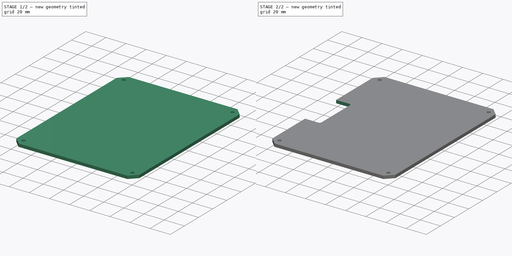
[diagram: build sequence overview — one tinted view per stage of 2, left to right]
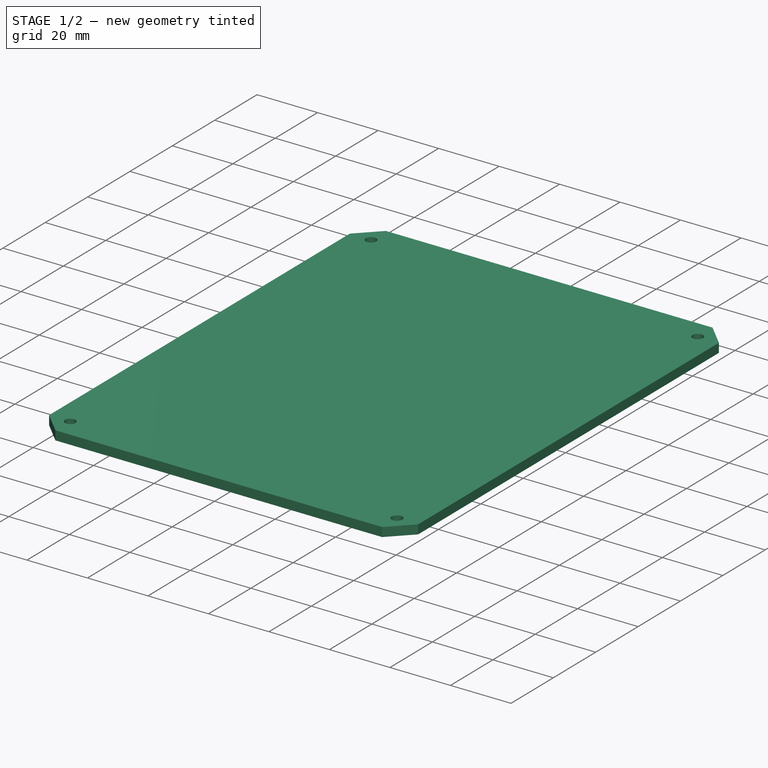
[diagram: stage 1 of 2 — iso view after this stage's code; geometry added in this stage tinted green]
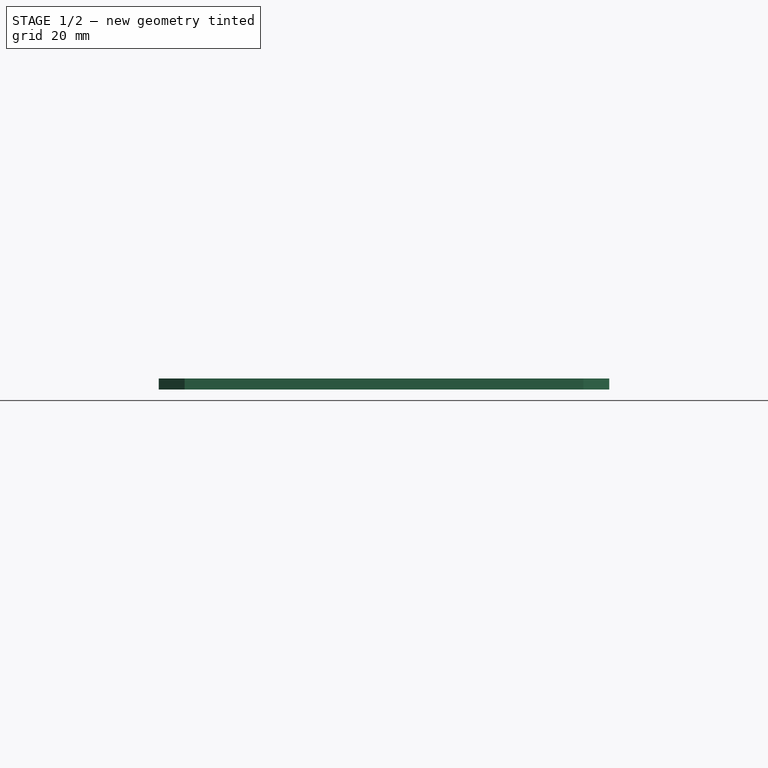
[diagram: stage 1 of 2 — front view after this stage's code; geometry added in this stage tinted green]
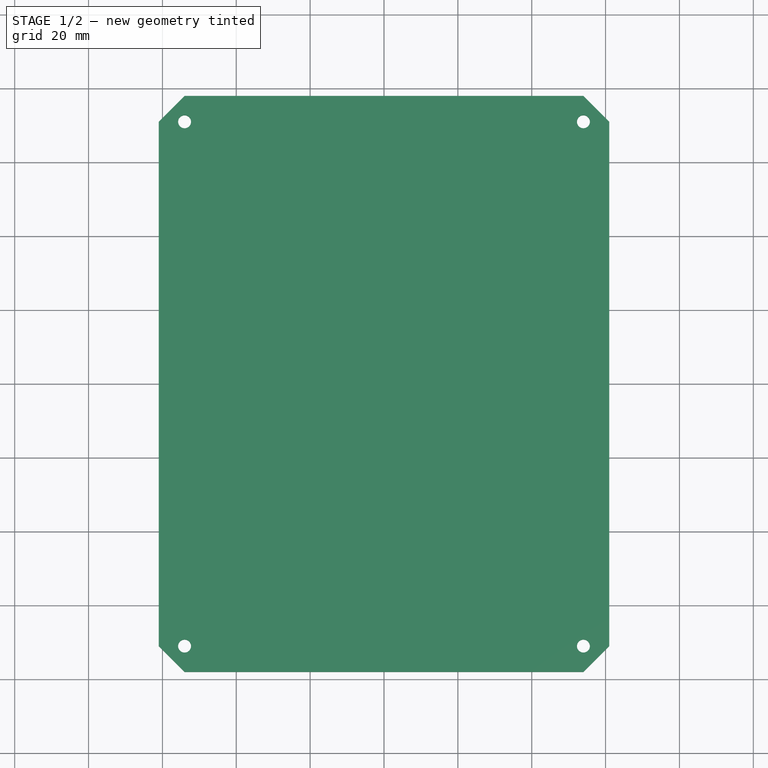
[diagram: stage 1 of 2 — top view after this stage's code; geometry added in this stage tinted green]
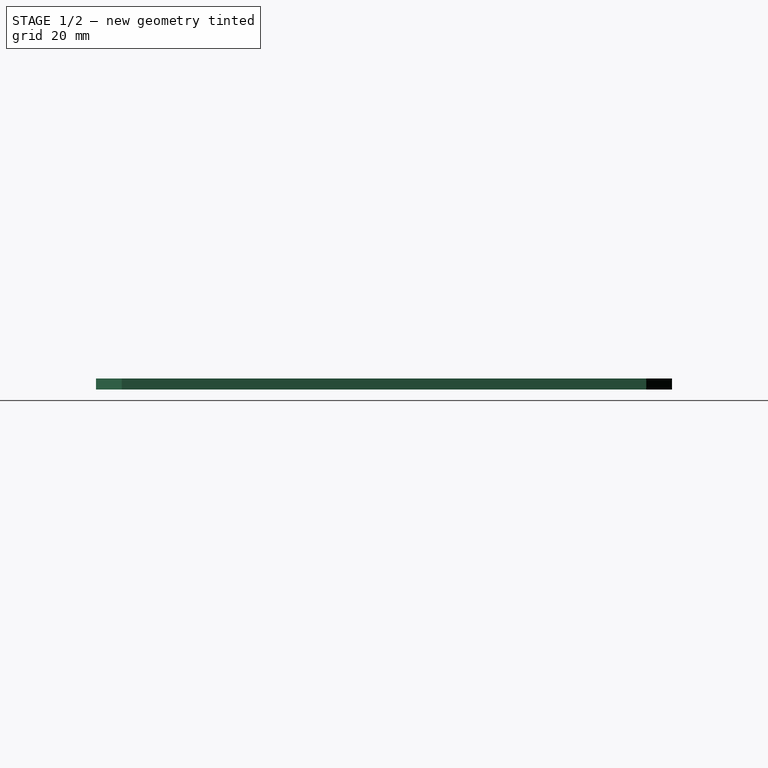
[diagram: stage 1 of 2 — right view after this stage's code; geometry added in this stage tinted green]
FCSTD DOCUMENT  (FreeCAD 0.17R13522 (Git))
Label: Corelia_0_Electronics_top_plate
License: All rights reserved
LicenseURL: http://en.wikipedia.org/wiki/All_rights_reserved
objects: Sketcher::SketchObject×3, PartDesign::Pocket×2, PartDesign::Pad×1, PartDesign::Fillet×1, PartDesign::Body×1, TechDraw::DrawSVGTemplate×1, TechDraw::DrawViewPart×1, TechDraw::DrawPage×1
note: 11 computed .brp shape members not serialized (recipe doc carries the construction recipe); baked Part::Feature solids carry a one-line shape summary decoded from their .brp

FEATURE [Sketcher::SketchObject] Sketch
  MapMode = 5
  Support = -> [XY_Plane]
  sketch-geometry (8):
    g0: LineSegment StartX=-61 StartY=71 StartZ=0 EndX=-54 EndY=78 EndZ=0
    g1: LineSegment StartX=-54 StartY=78 StartZ=0 EndX=54 EndY=78 EndZ=0
    g2: LineSegment StartX=54 StartY=78 StartZ=0 EndX=61 EndY=71 EndZ=0
    g3: LineSegment StartX=61 StartY=71 StartZ=0 EndX=61 EndY=-71 EndZ=0
    g4: LineSegment StartX=61 StartY=-71 StartZ=0 EndX=54 EndY=-78 EndZ=0
    g5: LineSegment StartX=54 StartY=-78 StartZ=0 EndX=-54 EndY=-78 EndZ=0
    g6: LineSegment StartX=-54 StartY=-78 StartZ=0 EndX=-61 EndY=-71 EndZ=0
    g7: LineSegment StartX=-61 StartY=-71 StartZ=0 EndX=-61 EndY=71 EndZ=0
  constraints (24):
    c: Coincident(g0,g1)
    c: Horizontal(g1)
    c: Coincident(g1,g2)
    c: Coincident(g2,g3)
    c: Vertical(g3)
    c: Coincident(g3,g4)
    c: Coincident(g4,g5)
    c: Horizontal(g5)
    c: Coincident(g5,g6)
    c: Coincident(g6,g7)
    c: Coincident(g7,g0)
    c: Vertical(g7)
    c: Equal(g1,g5)
    c: Equal(g7,g3)
    c: Equal(g6,g4)
    c: Equal(g0,g2)
    c: Equal(g0,g6)
    c: Symmetric(g0,g6,g-1)
    c: Symmetric(g5,g0,g-1)
    c: DistanceY(g0,g0) = 7
    c: DistanceX(g0,g0) = 7
    c: DistanceX(g0,g2) = 122
    c: DistanceY(g5,g0) = 156
    c: DistanceX(g0) = -61
FEATURE [PartDesign::Pad] Pad
  Length = 3
  Length2 = 100
  Profile = -> Sketch
  Type = 0
FEATURE [Sketcher::SketchObject] Sketch005
  MapMode = 5
  Placement = pos=(0,0,3) rot=(0,0,1;0rad)
  sketch-geometry (8):
    g0: LineSegment [constr] StartX=-54 StartY=71 StartZ=0 EndX=54 EndY=71 EndZ=0
    g1: LineSegment [constr] StartX=54 StartY=71 StartZ=0 EndX=54 EndY=-71 EndZ=0
    g2: LineSegment [constr] StartX=54 StartY=-71 StartZ=0 EndX=-54 EndY=-71 EndZ=0
    g3: LineSegment [constr] StartX=-54 StartY=-71 StartZ=0 EndX=-54 EndY=71 EndZ=0
    g4: Circle CenterX=-54 CenterY=71 CenterZ=0 NormalX=0 NormalY=0 NormalZ=1 AngleXU=0 Radius=1.75
    g5: Circle CenterX=54 CenterY=71 CenterZ=0 NormalX=0 NormalY=0 NormalZ=1 AngleXU=0 Radius=1.75
    g6: Circle CenterX=-54 CenterY=-71 CenterZ=0 NormalX=0 NormalY=0 NormalZ=1 AngleXU=0 Radius=1.75
    g7: Circle CenterX=54 CenterY=-71 CenterZ=0 NormalX=0 NormalY=0 NormalZ=1 AngleXU=0 Radius=1.75
  constraints (20):
    c: Coincident(g0,g1)
    c: Coincident(g1,g2)
    c: Coincident(g2,g3)
    c: Coincident(g3,g0)
    c: Horizontal(g0)
    c: Horizontal(g2)
    c: Vertical(g1)
    c: Vertical(g3)
    c: Coincident(g4,g0)
    c: Coincident(g5,g0)
    c: Coincident(g6,g2)
    c: Coincident(g7,g1)
    c: Equal(g4,g6)
    c: Equal(g6,g7)
    c: Equal(g7,g5)
    c: Radius(g4) = 1.75
    c: DistanceX(g0,g0) = 108
    c: Symmetric(g0,g0,g-2)
    c: Symmetric(g0,g2,g-1)
    c: DistanceY(g3,g3) = 142
FEATURE [PartDesign::Pocket] Pocket004
  BaseFeature = -> Pad
  Length = 5
  Length2 = 100
  Profile = -> Sketch005
  Type = 1
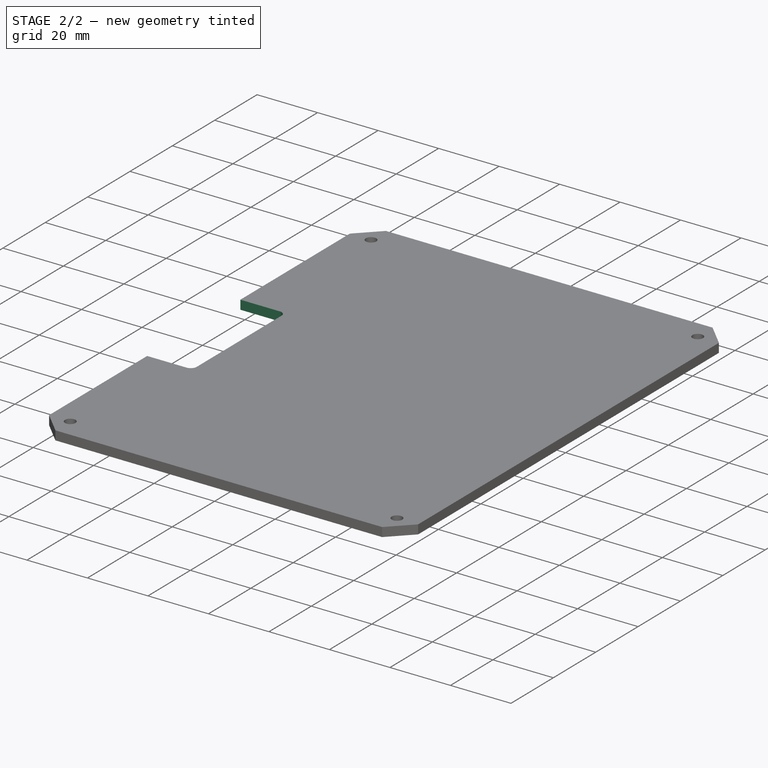
[diagram: stage 2 of 2 — iso view after this stage's code; geometry added in this stage tinted green]
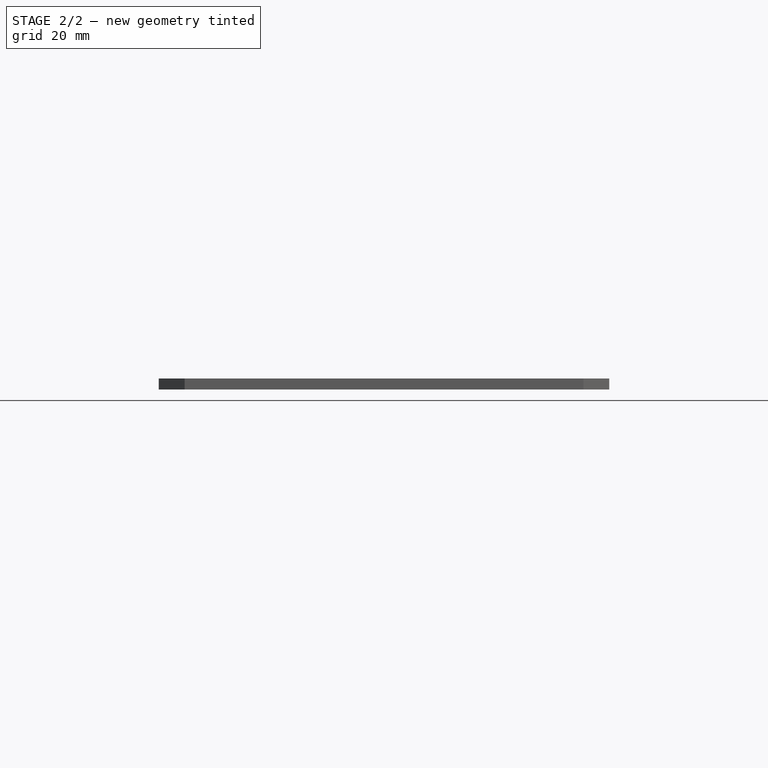
[diagram: stage 2 of 2 — front view after this stage's code; geometry added in this stage tinted green]
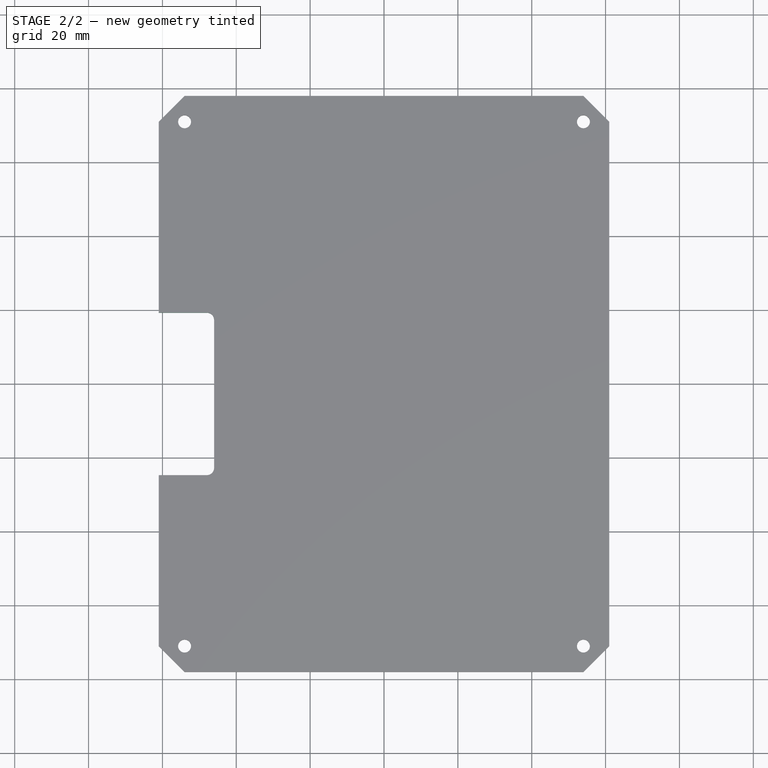
[diagram: stage 2 of 2 — top view after this stage's code; geometry added in this stage tinted green]
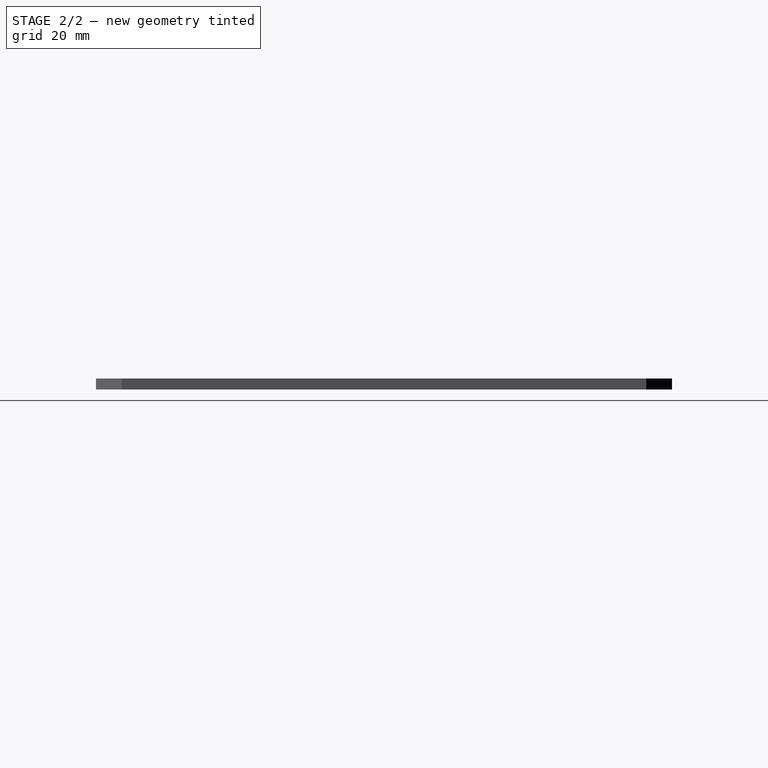
[diagram: stage 2 of 2 — right view after this stage's code; geometry added in this stage tinted green]
FEATURE [Sketcher::SketchObject] Sketch006
  MapMode = 5
  Placement = pos=(0,0,3) rot=(0,0,1;0rad)
  Support = -> [Pocket004]
  sketch-geometry (4):
    g0: LineSegment StartX=-61 StartY=19.3 StartZ=0 EndX=-46 EndY=19.3 EndZ=0
    g1: LineSegment StartX=-46 StartY=19.3 StartZ=0 EndX=-46 EndY=-24.7 EndZ=0
    g2: LineSegment StartX=-46 StartY=-24.7 StartZ=0 EndX=-61 EndY=-24.7 EndZ=0
    g3: LineSegment StartX=-61 StartY=-24.7 StartZ=0 EndX=-61 EndY=19.3 EndZ=0
  constraints (12):
    c: Coincident(g0,g1)
    c: Coincident(g1,g2)
    c: Coincident(g2,g3)
    c: Coincident(g3,g0)
    c: Horizontal(g0)
    c: Horizontal(g2)
    c: Vertical(g1)
    c: Vertical(g3)
    c: DistanceX(g0,g0) = 15
    c: DistanceY(g3,g3) = 44
    c: DistanceX(g0) = -46
    c: DistanceY(g0) = 19.3
FEATURE [PartDesign::Pocket] Pocket
  BaseFeature = -> Pocket004
  Length = 5
  Length2 = 100
  Profile = -> Sketch006
  Type = 1
FEATURE [PartDesign::Fillet] Fillet
  Base = -> Pocket [Edge37,Edge39]
  BaseFeature = -> Pocket
  Radius = 2
FEATURE [PartDesign::Body] Body
  Group = -> [Sketch,Pad,Sketch005,Pocket004,Sketch006,Pocket,Fillet]
  Origin = -> Origin
  Tip = -> Fillet
FEATURE [TechDraw::DrawSVGTemplate] Template
  Height = 210
  Orientation = 1
  Width = 297
FEATURE [TechDraw::DrawViewPart] View
  CoarseView = false
  Direction = (0,0,1)
  Focus = 100
  HardHidden = false
  IsoCount = 0
  IsoHidden = false
  IsoVisible = false
  LockPosition = false
  Perspective = false
  Rotation = 0
  ScaleType = 0
  SeamHidden = false
  SeamVisible = false
  SmoothHidden = false
  SmoothVisible = false
  Source = -> [Fillet]
  X = 148.5
  Y = 105
FEATURE [TechDraw::DrawPage] Page
  KeepUpdated = true
  ProjectionType = 0
  Template = -> Template
  Views = -> [View]
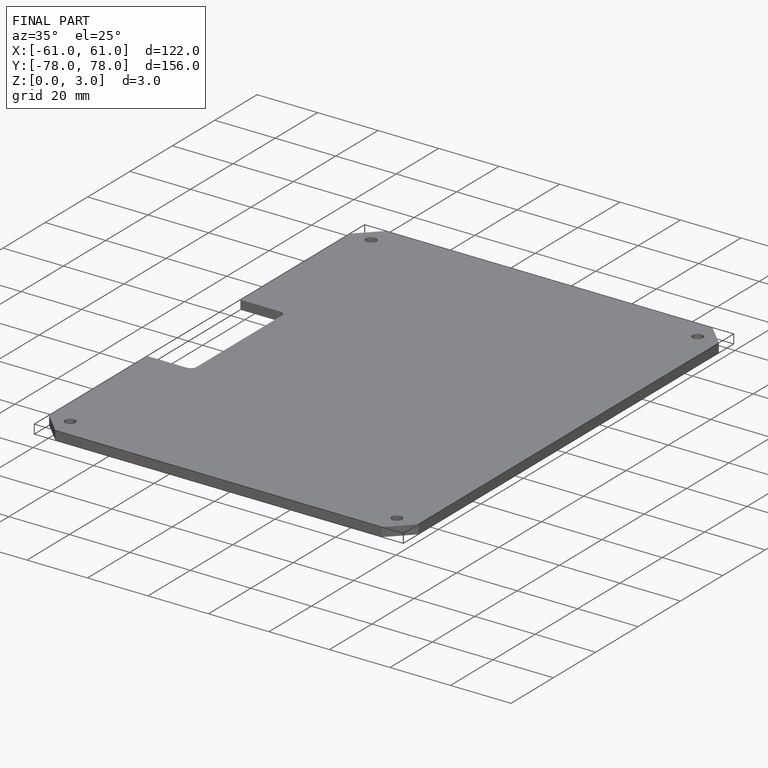
[diagram: finished part — iso view with bounding-box wireframe]
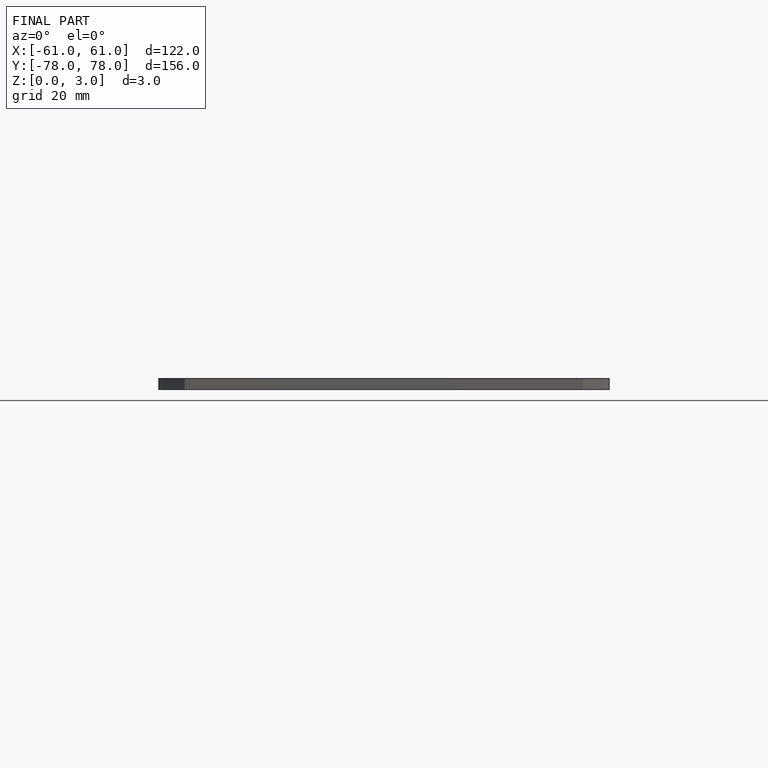
[diagram: finished part — front view with bounding-box wireframe]
